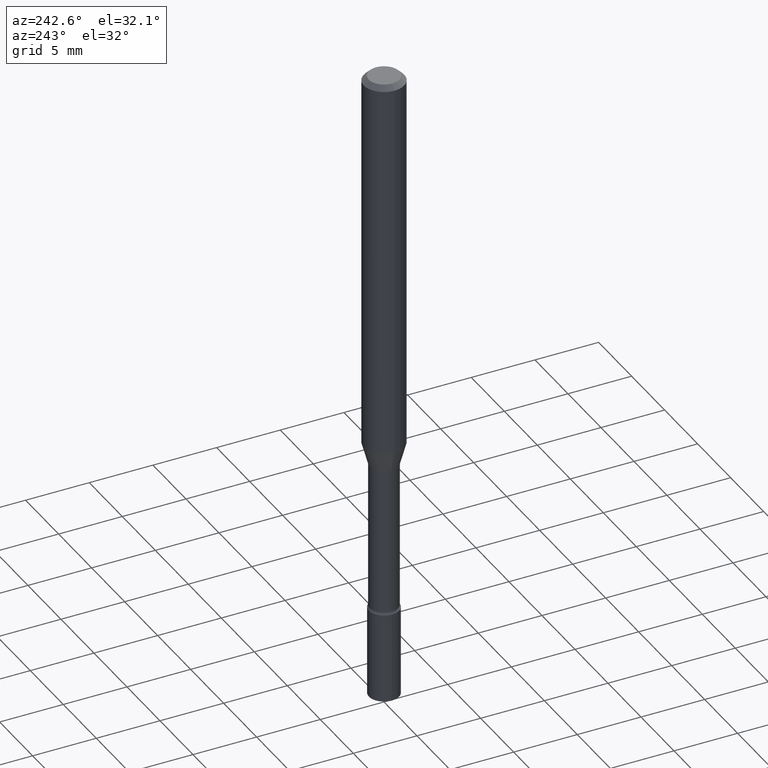
[diagram: clean part render]
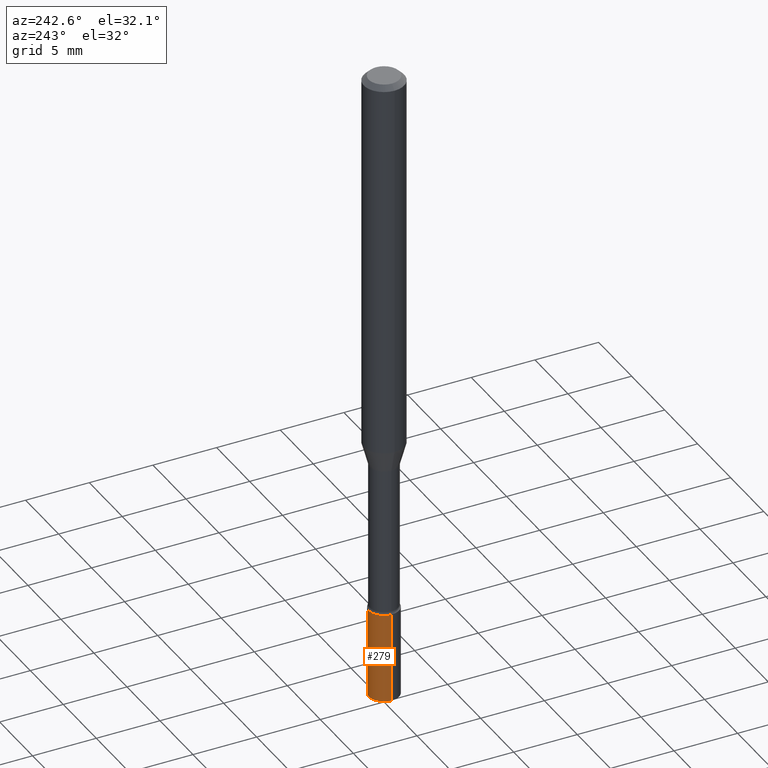
[diagram: same view with one face highlighted and labeled with its STEP entity id]
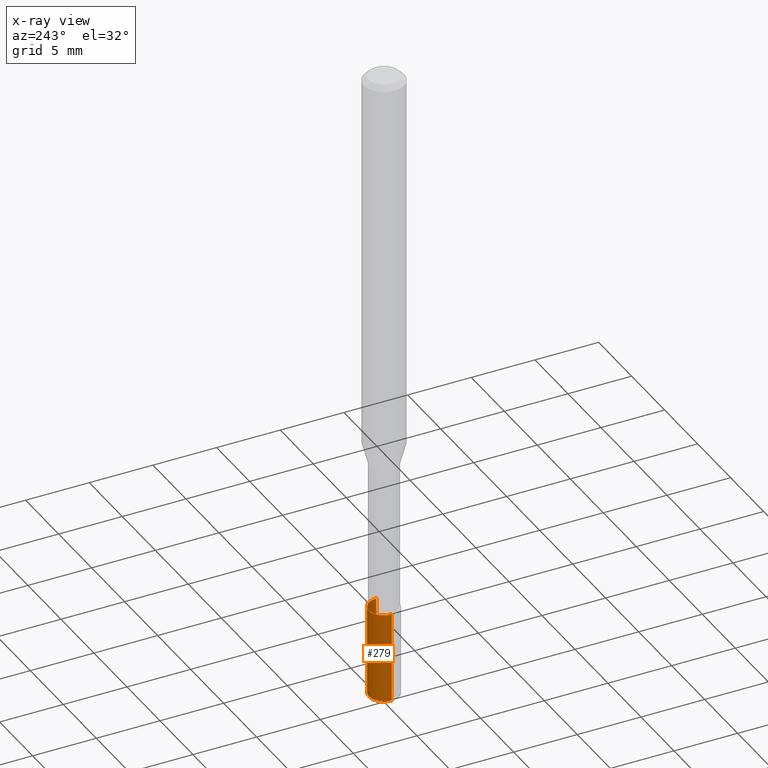
[diagram: x-ray of the same camera — body ghosted, the highlighted face saturated]
A machine part, auxiliary view. The second image highlights one B-rep face of the part: STEP entity #279.
The next image is the same camera in x-ray: the body ghosted, the highlighted face saturated — about 0% of this face is hidden behind the body in this view.
In plain terms, the highlighted cylindrical surface (edge-blend (fillet) strip) has radius 1.1811 mm, axis along (-0, 0, 1).
Its self-contained STEP definition (entity closure, byte-faithful):
#32 = VECTOR ( 'NONE', #126, 39.37007874015748143 ) ;
#46 = DIRECTION ( 'NONE',  ( -2.445468806185136597E-29, 3.491481338843145583E-15, 1.000000000000000000 ) ) ;
#52 = CARTESIAN_POINT ( 'NONE',  ( 0.04649999999999999967, -7.307670442198702662E-15, -2.000000000000000000 ) ) ;
#59 = EDGE_CURVE ( 'NONE', #160, #321, #425, .T. ) ;
#63 = CARTESIAN_POINT ( 'NONE',  ( -0.04649999999999999967, -6.165498658789225463E-15, -2.000000000000000000 ) ) ;
#77 = CIRCLE ( 'NONE', #331, 0.04649999999999999967 ) ;
#84 = CARTESIAN_POINT ( 'NONE',  ( 4.208651815444620572E-29, -6.008839384149054309E-15, -1.721000000000000085 ) ) ;
#98 = LINE ( 'NONE', #278, #32 ) ;
#104 = ORIENTED_EDGE ( 'NONE', *, *, #59, .T. ) ;
#126 = DIRECTION ( 'NONE',  ( -2.445468806185136877E-29, 3.491481338843145188E-15, 1.000000000000000000 ) ) ;
#130 = ORIENTED_EDGE ( 'NONE', *, *, #318, .F. ) ;
#136 = VERTEX_POINT ( 'NONE', #223 ) ;
#152 = DIRECTION ( 'NONE',  ( 1.000000000000000000, -6.982962677686267499E-15, 4.876176775795936353E-29 ) ) ;
#158 = CARTESIAN_POINT ( 'NONE',  ( -0.04649999999999999967, -6.165498658789225463E-15, -1.721000000000000085 ) ) ;
#160 = VERTEX_POINT ( 'NONE', #63 ) ;
#175 = ORIENTED_EDGE ( 'NONE', *, *, #481, .F. ) ;
#223 = CARTESIAN_POINT ( 'NONE',  ( 0.04649999999999999967, -6.333547148661465016E-15, -1.721000000000000085 ) ) ;
#232 = CARTESIAN_POINT ( 'NONE',  ( 0.000000000000000000, 0.000000000000000000, 0.000000000000000000 ) ) ;
#233 = AXIS2_PLACEMENT_3D ( 'NONE', #281, #46, #451 ) ;
#238 = ORIENTED_EDGE ( 'NONE', *, *, #461, .T. ) ;
#267 = CARTESIAN_POINT ( 'NONE',  ( -0.04649999999999999967, 3.304023721284465841E-16, -2.287304816968531530E-30 ) ) ;
#273 = CYLINDRICAL_SURFACE ( 'NONE', #459, 0.04649999999999999967 ) ;
#278 = CARTESIAN_POINT ( 'NONE',  ( 0.04649999999999999967, -3.247077645124114474E-16, 2.267422200745110326E-30 ) ) ;
#279 = ADVANCED_FACE ( 'NONE', ( #518 ), #273, .T. ) ;
#281 = CARTESIAN_POINT ( 'NONE',  ( 4.890937612370273194E-29, -6.982962677686291165E-15, -2.000000000000000000 ) ) ;
#283 = VECTOR ( 'NONE', #373, 39.37007874015748143 ) ;
#318 = EDGE_CURVE ( 'NONE', #136, #321, #77, .T. ) ;
#321 = VERTEX_POINT ( 'NONE', #158 ) ;
#331 = AXIS2_PLACEMENT_3D ( 'NONE', #84, #514, #388 ) ;
#361 = EDGE_LOOP ( 'NONE', ( #238, #104, #130, #175 ) ) ;
#373 = DIRECTION ( 'NONE',  ( -2.445468806185136877E-29, 3.491481338843145188E-15, 1.000000000000000000 ) ) ;
#388 = DIRECTION ( 'NONE',  ( 1.000000000000000000, -6.982962677686260400E-15, 0.000000000000000000 ) ) ;
#425 = LINE ( 'NONE', #267, #283 ) ;
#432 = DIRECTION ( 'NONE',  ( -2.445468806185136597E-29, 3.491481338843145583E-15, 1.000000000000000000 ) ) ;
#447 = VERTEX_POINT ( 'NONE', #52 ) ;
#451 = DIRECTION ( 'NONE',  ( 1.000000000000000000, -6.982962677686260400E-15, 0.000000000000000000 ) ) ;
#459 = AXIS2_PLACEMENT_3D ( 'NONE', #232, #432, #152 ) ;
#461 = EDGE_CURVE ( 'NONE', #447, #160, #464, .T. ) ;
#464 = CIRCLE ( 'NONE', #233, 0.04649999999999999967 ) ;
#481 = EDGE_CURVE ( 'NONE', #447, #136, #98, .T. ) ;
#514 = DIRECTION ( 'NONE',  ( -2.445468806185136597E-29, 3.491481338843145583E-15, 1.000000000000000000 ) ) ;
#518 = FACE_OUTER_BOUND ( 'NONE', #361, .T. ) ;